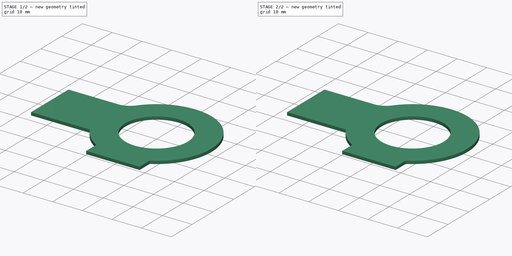
[diagram: build sequence overview — one tinted view per stage of 2, left to right]
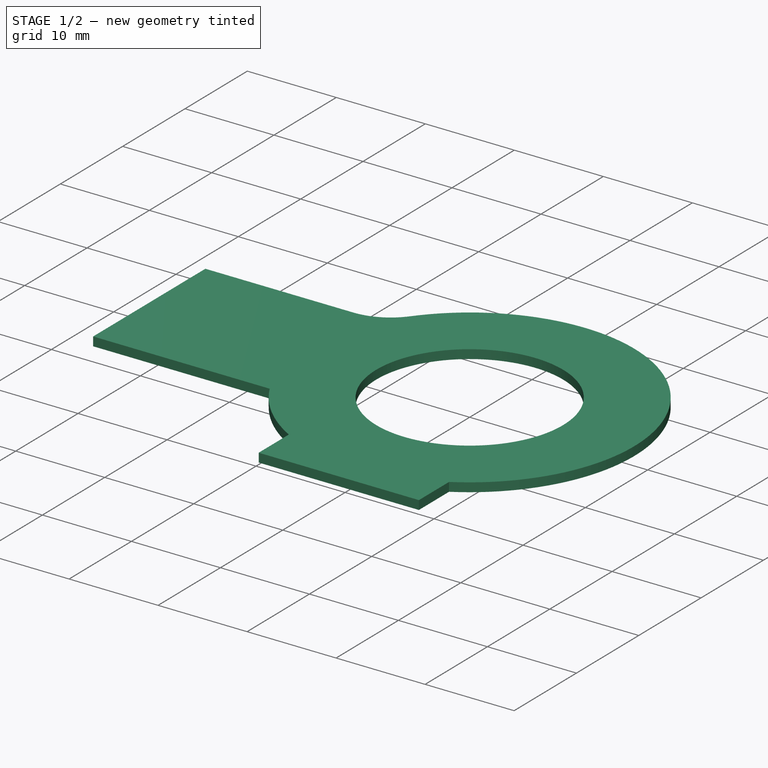
[diagram: stage 1 of 2 — iso view after this stage's code; geometry added in this stage tinted green]
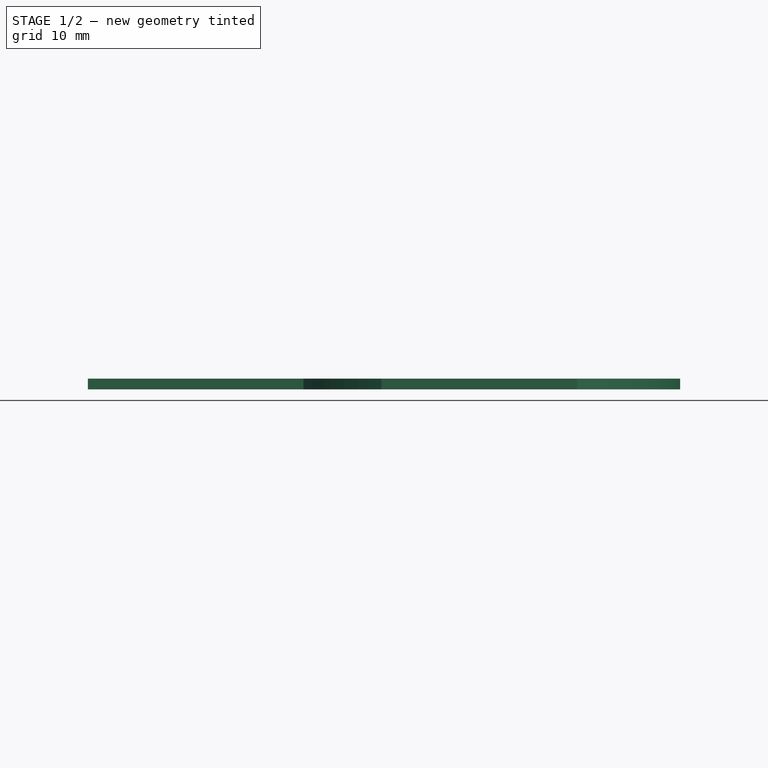
[diagram: stage 1 of 2 — front view after this stage's code; geometry added in this stage tinted green]
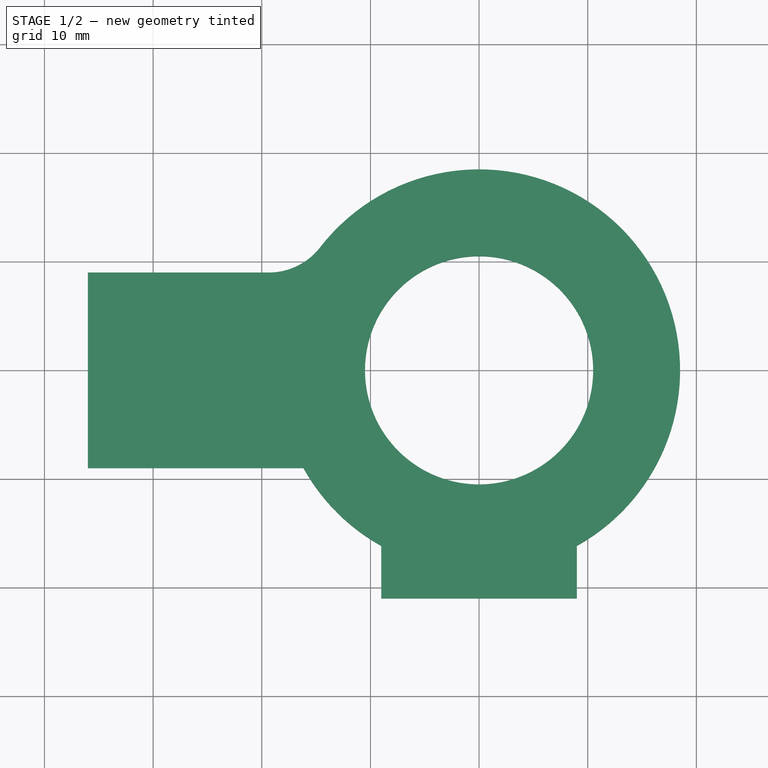
[diagram: stage 1 of 2 — top view after this stage's code; geometry added in this stage tinted green]
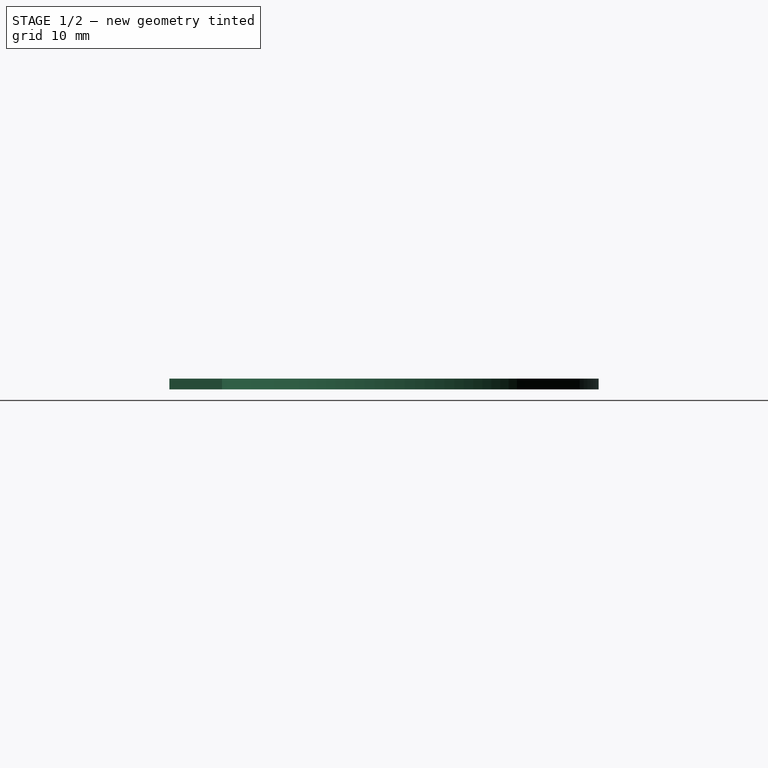
[diagram: stage 1 of 2 — right view after this stage's code; geometry added in this stage tinted green]
FCSTD DOCUMENT  (FreeCAD 0.15R4671 (Git))
Label: DIN463_M20TabWasher
License: CreativeCommons Attribution-ShareAlike
LicenseURL: http://creativecommons.org/licenses/by-sa/4.0/
objects: PartDesign::Fillet×2, Sketcher::SketchObject×1, PartDesign::Pad×1
note: 5 computed .brp shape members not serialized (recipe doc carries the construction recipe); baked Part::Feature solids carry a one-line shape summary decoded from their .brp

FEATURE [Sketcher::SketchObject] Sketch
  sketch-geometry (9):
    g0: LineSegment StartX=-16.1632 StartY=-9 StartZ=0 EndX=-36 EndY=-9 EndZ=0
    g1: LineSegment StartX=-36 StartY=-9 StartZ=0 EndX=-36 EndY=9 EndZ=0
    g2: LineSegment StartX=-9 StartY=-21 StartZ=0 EndX=9 EndY=-21 EndZ=0
    g3: LineSegment StartX=9 StartY=-21 StartZ=0 EndX=9 EndY=-16.1632 EndZ=0
    g4: LineSegment StartX=-9 StartY=-16.1632 StartZ=0 EndX=-9 EndY=-21 EndZ=0
    g5: Circle CenterX=0 CenterY=0 CenterZ=0 NormalX=0 NormalY=0 NormalZ=1 Radius=10.5
    g6: LineSegment StartX=-36 StartY=9 StartZ=0 EndX=-16.1632 EndY=9 EndZ=0
    g7: ArcOfCircle CenterX=0 CenterY=0 CenterZ=0 NormalX=0 NormalY=0 NormalZ=1 Radius=18.5 StartAngle=5.22045 EndAngle=8.91671
    g8: ArcOfCircle CenterX=0 CenterY=0 CenterZ=0 NormalX=0 NormalY=0 NormalZ=1 Radius=18.5 StartAngle=3.64966 EndAngle=4.20433
  constraints (26):
    c: Coincident(g0,g1)
    c: Horizontal(g0)
    c: Vertical(g1)
    c: Coincident(g2,g3)
    c: Coincident(g4,g2)
    c: Vertical(g3)
    c: Vertical(g4)
    c: Symmetric(g2,g2,g-2)
    c: Symmetric(g6,g0,g-1)
    c: DistanceX(g-1,g0) = -36
    c: DistanceY(g-1,g2) = -21
    c: DistanceY(g1) = 18
    c: Radius(g5) = 10.5
    c: Coincident(g5,g-1)
    c: Coincident(g6,g1)
    c: Horizontal(g6)
    c: Coincident(g7,g6)
    c: Coincident(g7,g-1)
    c: Radius(g7) = 18.5
    c: Coincident(g7,g3)
    c: Coincident(g8,g0)
    c: Coincident(g8,g4)
    c: Coincident(g8,g-1)
    c: Equal(g3,g4)
    c: Equal(g6,g0)
    c: Equal(g1,g2)
FEATURE [PartDesign::Pad] Pad
  Length = 1
  Length2 = 100
  Sketch = -> Sketch
  Type = 0
FEATURE [PartDesign::Fillet] Fillet
  Base = -> Pad [Edge8]
  Radius = 6
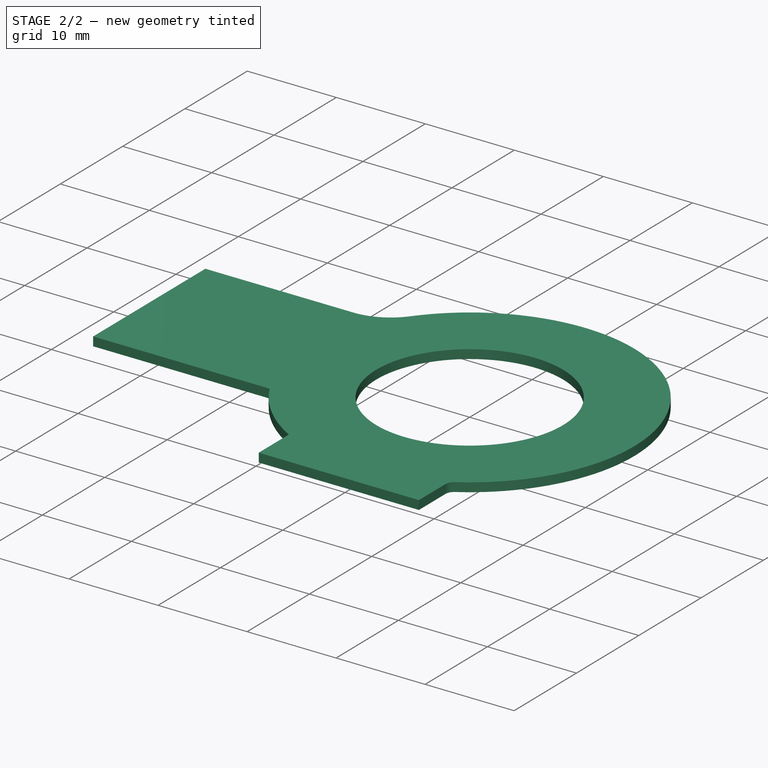
[diagram: stage 2 of 2 — iso view after this stage's code; geometry added in this stage tinted green]
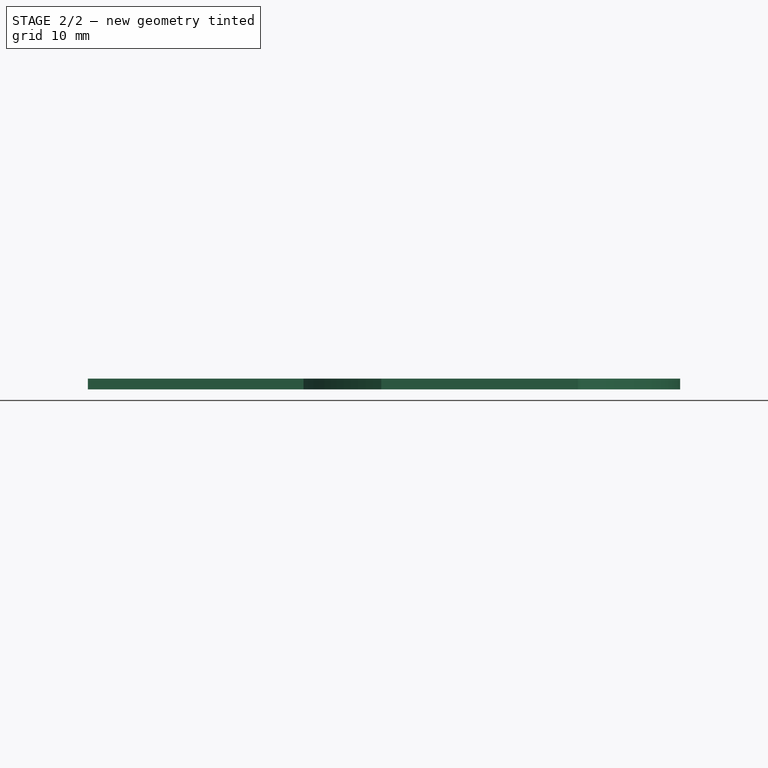
[diagram: stage 2 of 2 — front view after this stage's code; geometry added in this stage tinted green]
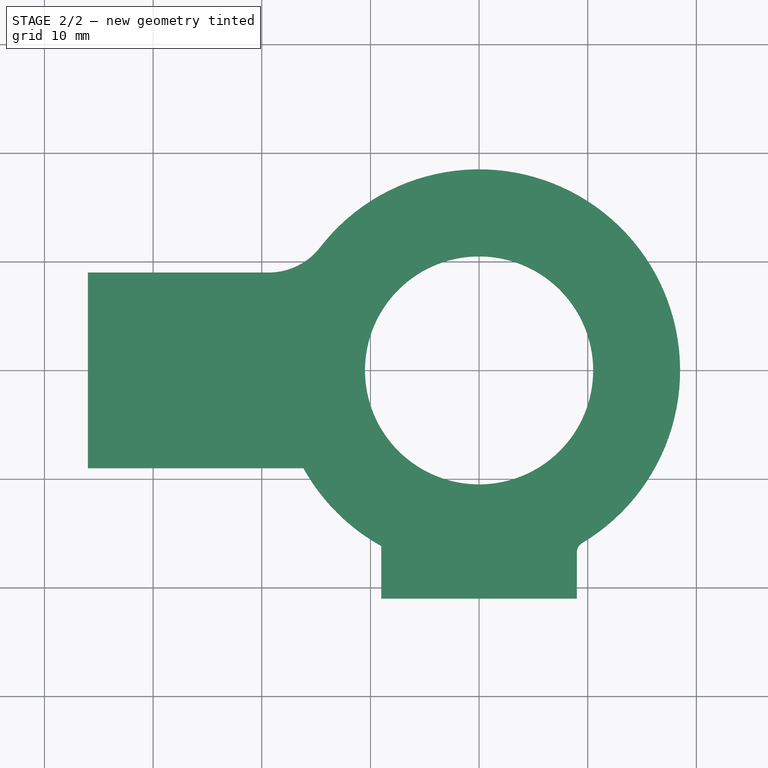
[diagram: stage 2 of 2 — top view after this stage's code; geometry added in this stage tinted green]
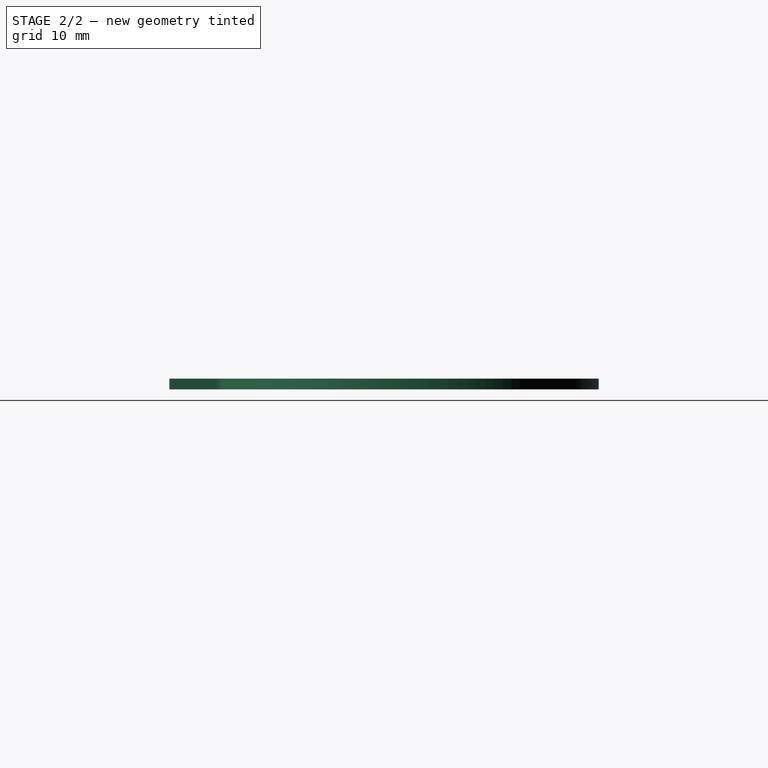
[diagram: stage 2 of 2 — right view after this stage's code; geometry added in this stage tinted green]
FEATURE [PartDesign::Fillet] Fillet001
  Base = -> Fillet [Edge25]
  Radius = 1
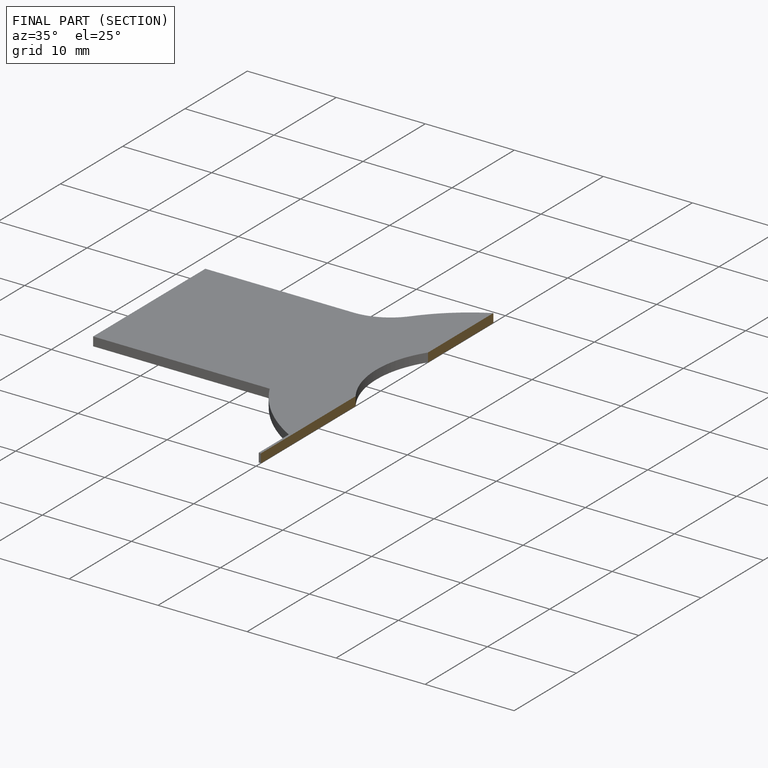
[diagram: finished part — half-section view (interior)]
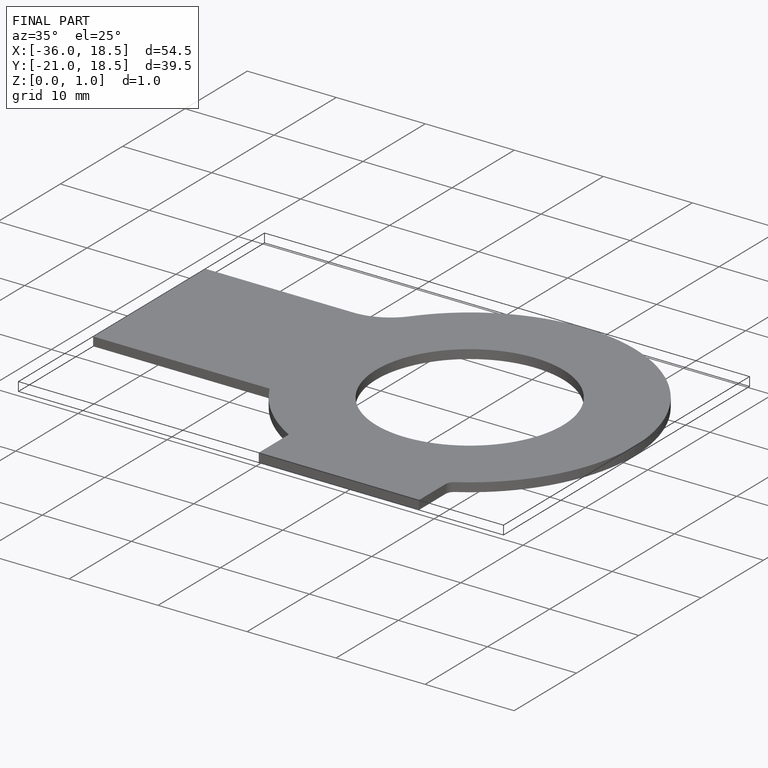
[diagram: finished part — iso view with bounding-box wireframe]
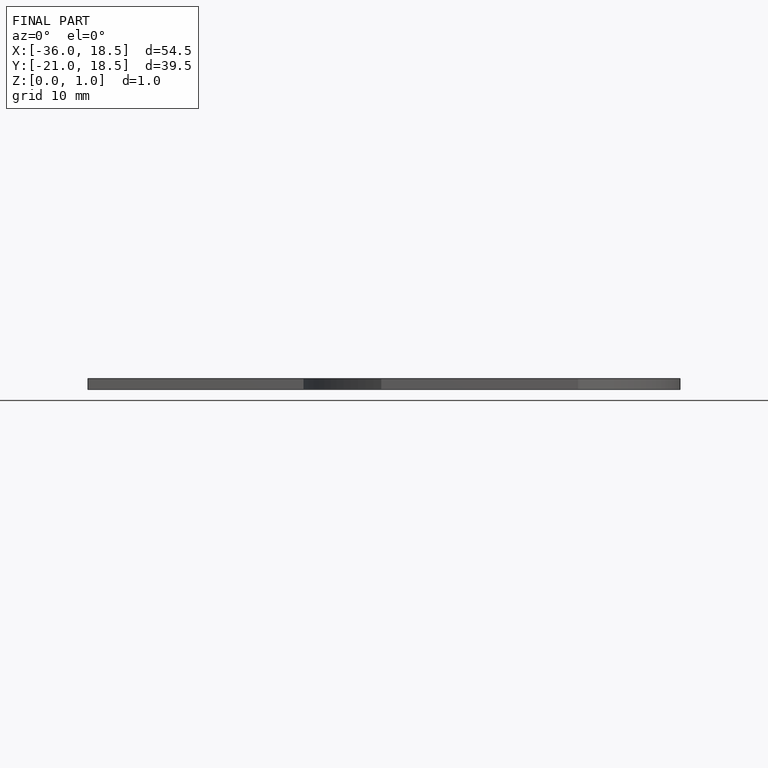
[diagram: finished part — front view with bounding-box wireframe]
